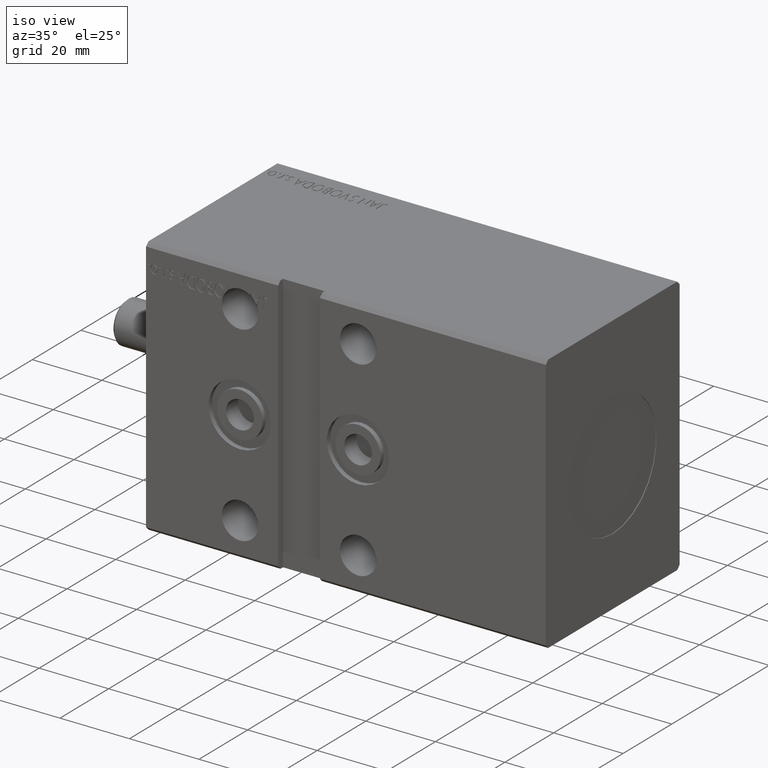
[diagram: clean part render]
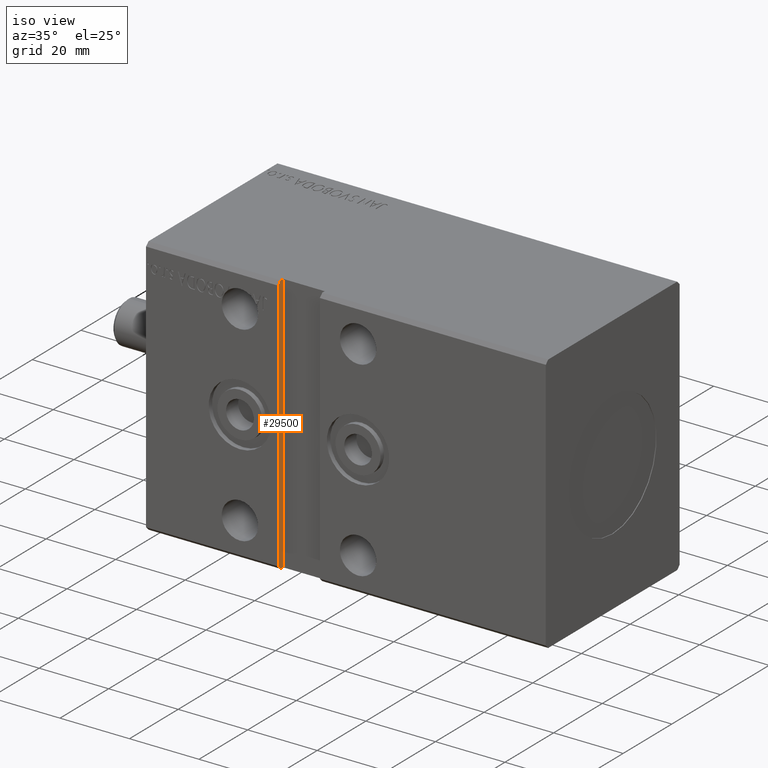
[diagram: same view with one face highlighted and labeled with its STEP entity id]
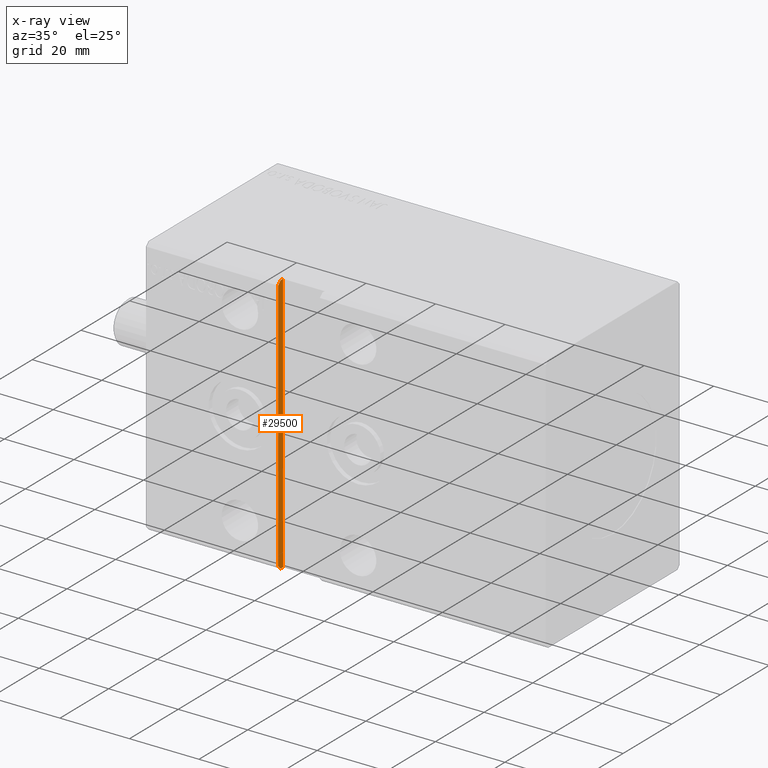
[diagram: x-ray of the same camera — body ghosted, the highlighted face saturated]
A machine part, iso view. The second image highlights one B-rep face of the part: STEP entity #29500.
The next image is the same camera in x-ray: the body ghosted, the highlighted face saturated — about 0% of this face is hidden behind the body in this view.
In plain terms, the highlighted planar face has unit normal (-1, 0, -0).
Its self-contained STEP definition (entity closure, byte-faithful):
#1193 = ORIENTED_EDGE ( 'NONE', *, *, #20927, .T. ) ;
#2478 = DIRECTION ( 'NONE',  ( -9.251858538542971581E-17, 0.000000000000000000, 1.000000000000000000 ) ) ;
#4467 = CARTESIAN_POINT ( 'NONE',  ( 37.99999999999999289, -26.50000000000001066, 37.50000000000000000 ) ) ;
#4814 = EDGE_CURVE ( 'NONE', #13839, #18548, #33544, .T. ) ;
#5720 = ORIENTED_EDGE ( 'NONE', *, *, #40314, .F. ) ;
#6284 = VECTOR ( 'NONE', #10199, 1000.000000000000000 ) ;
#6708 = CARTESIAN_POINT ( 'NONE',  ( 37.99999999999999289, -27.50000000000000000, -36.49999999999999289 ) ) ;
#6881 = CARTESIAN_POINT ( 'NONE',  ( 38.00000000000000711, -25.50000000000000355, -37.49999999999999289 ) ) ;
#6914 = VECTOR ( 'NONE', #33331, 1000.000000000000114 ) ;
#7682 = VECTOR ( 'NONE', #19420, 1000.000000000000000 ) ;
#8398 = CARTESIAN_POINT ( 'NONE',  ( 38.00000000000000000, -25.50000000000000711, 37.50000000000000711 ) ) ;
#8610 = DIRECTION ( 'NONE',  ( -1.000000000000000000, 5.095052762929194839E-33, -9.251858538542971581E-17 ) ) ;
#8627 = EDGE_CURVE ( 'NONE', #32830, #35923, #33281, .T. ) ;
#9458 = CARTESIAN_POINT ( 'NONE',  ( 38.00000000000000000, -25.50000000000000711, 37.50000000000000711 ) ) ;
#10199 = DIRECTION ( 'NONE',  ( 9.251858538542971581E-17, 9.251858538542971581E-17, -1.000000000000000000 ) ) ;
#13181 = LINE ( 'NONE', #29333, #6284 ) ;
#13534 = ORIENTED_EDGE ( 'NONE', *, *, #14520, .T. ) ;
#13682 = LINE ( 'NONE', #6708, #41926 ) ;
#13839 = VERTEX_POINT ( 'NONE', #39835 ) ;
#14406 = CARTESIAN_POINT ( 'NONE',  ( 38.00000000000000000, -26.50000000000000711, 37.50000000000000711 ) ) ;
#14520 = EDGE_CURVE ( 'NONE', #33982, #18548, #35427, .T. ) ;
#16105 = ORIENTED_EDGE ( 'NONE', *, *, #23181, .F. ) ;
#16504 = DIRECTION ( 'NONE',  ( -0.000000000000000000, -1.000000000000000000, -5.507058653894625237E-17 ) ) ;
#16526 = ORIENTED_EDGE ( 'NONE', *, *, #8627, .F. ) ;
#16881 = EDGE_LOOP ( 'NONE', ( #1193, #5720, #16526, #16105, #13534, #28150 ) ) ;
#17126 = DIRECTION ( 'NONE',  ( -0.000000000000000000, -1.000000000000000000, -5.507058653894625237E-17 ) ) ;
#18548 = VERTEX_POINT ( 'NONE', #14406 ) ;
#18554 = VECTOR ( 'NONE', #17126, 1000.000000000000000 ) ;
#19420 = DIRECTION ( 'NONE',  ( 9.251858538542971581E-17, 9.251858538542971581E-17, -1.000000000000000000 ) ) ;
#19987 = VECTOR ( 'NONE', #16504, 1000.000000000000000 ) ;
#20059 = DIRECTION ( 'NONE',  ( -6.542051911182419742E-17, -0.7071067811865450192, 0.7071067811865500152 ) ) ;
#20927 = EDGE_CURVE ( 'NONE', #13839, #22262, #13181, .T. ) ;
#22262 = VERTEX_POINT ( 'NONE', #30222 ) ;
#22807 = LINE ( 'NONE', #9458, #7682 ) ;
#23181 = EDGE_CURVE ( 'NONE', #33982, #32830, #22807, .T. ) ;
#24744 = FACE_OUTER_BOUND ( 'NONE', #16881, .T. ) ;
#28150 = ORIENTED_EDGE ( 'NONE', *, *, #4814, .F. ) ;
#29333 = CARTESIAN_POINT ( 'NONE',  ( 38.00000000000000000, -27.50000000000000711, 37.50000000000000711 ) ) ;
#29500 = ADVANCED_FACE ( 'NONE', ( #24744 ), #37705, .F. ) ;
#30222 = CARTESIAN_POINT ( 'NONE',  ( 37.99999999999999289, -27.50000000000000355, -36.49999999999998579 ) ) ;
#32830 = VERTEX_POINT ( 'NONE', #6881 ) ;
#33281 = LINE ( 'NONE', #33927, #18554 ) ;
#33331 = DIRECTION ( 'NONE',  ( -6.542051911182395090E-17, 0.7071067811865474617, 0.7071067811865474617 ) ) ;
#33544 = LINE ( 'NONE', #4467, #6914 ) ;
#33927 = CARTESIAN_POINT ( 'NONE',  ( 38.00000000000000711, -25.50000000000000355, -37.49999999999999289 ) ) ;
#33982 = VERTEX_POINT ( 'NONE', #39560 ) ;
#35427 = LINE ( 'NONE', #35634, #19987 ) ;
#35562 = AXIS2_PLACEMENT_3D ( 'NONE', #8398, #8610, #2478 ) ;
#35634 = CARTESIAN_POINT ( 'NONE',  ( 38.00000000000000000, -25.50000000000000711, 37.50000000000000711 ) ) ;
#35923 = VERTEX_POINT ( 'NONE', #40209 ) ;
#37705 = PLANE ( 'NONE',  #35562 ) ;
#39560 = CARTESIAN_POINT ( 'NONE',  ( 38.00000000000000000, -25.50000000000000711, 37.50000000000000711 ) ) ;
#39835 = CARTESIAN_POINT ( 'NONE',  ( 38.00000000000000000, -27.50000000000000711, 36.50000000000000711 ) ) ;
#40209 = CARTESIAN_POINT ( 'NONE',  ( 38.00000000000000000, -26.50000000000000711, -37.49999999999999289 ) ) ;
#40314 = EDGE_CURVE ( 'NONE', #35923, #22262, #13682, .T. ) ;
#41926 = VECTOR ( 'NONE', #20059, 1000.000000000000000 ) ;